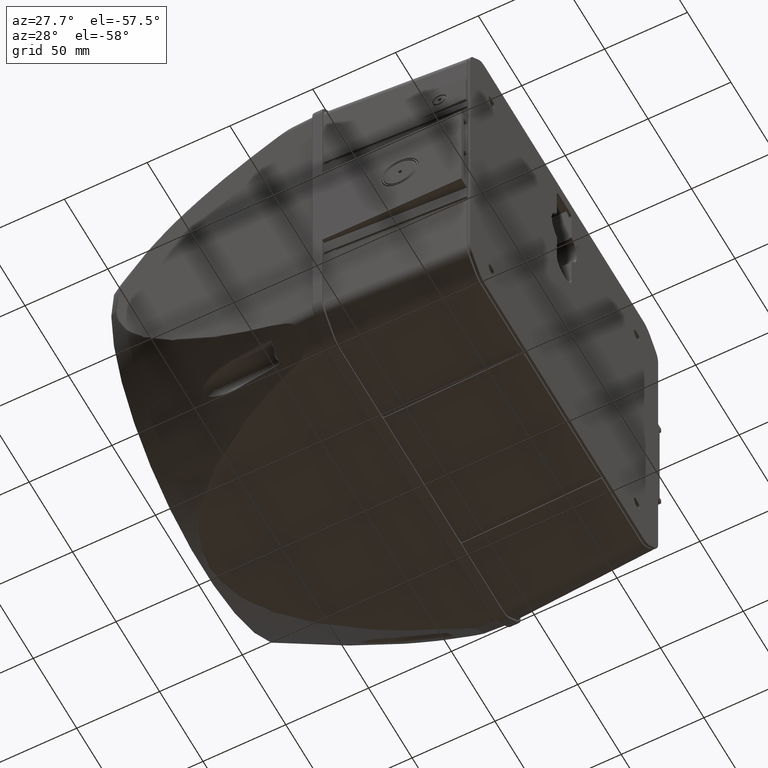
[diagram: clean part render]
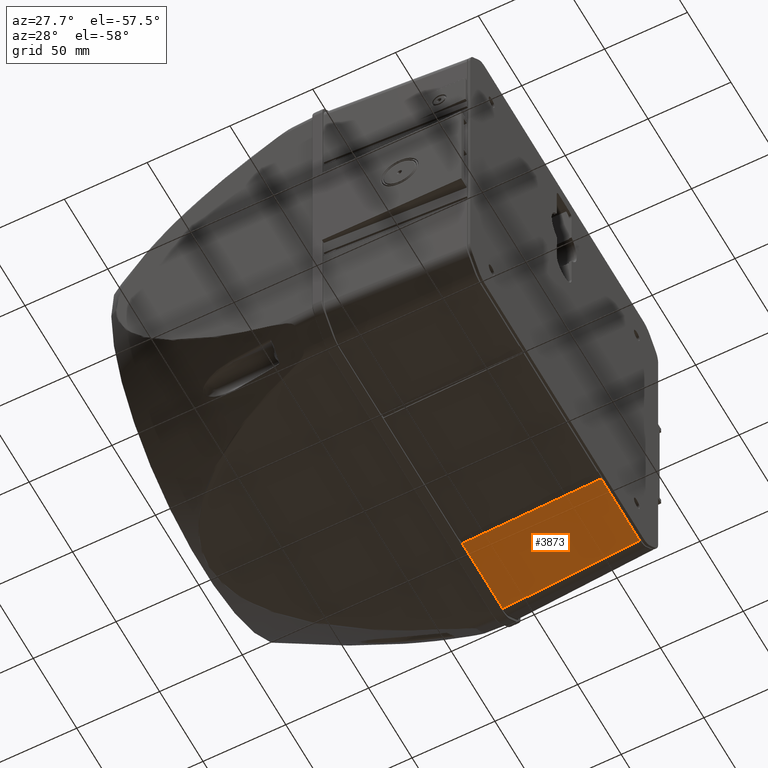
[diagram: same view with one face highlighted and labeled with its STEP entity id]
A machine part, auxiliary view. The second image highlights one B-rep face of the part: STEP entity #3873.
In plain terms, the highlighted planar face has unit normal (0.0523, 0, -0.9986).
Its self-contained STEP definition (entity closure, byte-faithful):
#623=ELLIPSE('',#23773,0.450617555699064,0.45);
#3873=ADVANCED_FACE('',(#5720),#5162,.T.);
#5162=PLANE('',#23774);
#5720=FACE_OUTER_BOUND('',#7218,.T.);
#7218=EDGE_LOOP('',(#10528,#10529,#10530,#10531,#10532));
#10528=ORIENTED_EDGE('',*,*,#18398,.T.);
#10529=ORIENTED_EDGE('',*,*,#18399,.T.);
#10530=ORIENTED_EDGE('',*,*,#18400,.T.);
#10531=ORIENTED_EDGE('',*,*,#18401,.T.);
#10532=ORIENTED_EDGE('',*,*,#18402,.T.);
#16134=VERTEX_POINT('',#42281);
#16135=VERTEX_POINT('',#42282);
#16136=VERTEX_POINT('',#42284);
#16137=VERTEX_POINT('',#42286);
#16138=VERTEX_POINT('',#42288);
#18398=EDGE_CURVE('',#16134,#16135,#20976,.T.);
#18399=EDGE_CURVE('',#16135,#16136,#20977,.T.);
#18400=EDGE_CURVE('',#16136,#16137,#20978,.T.);
#18401=EDGE_CURVE('',#16137,#16138,#623,.T.);
#18402=EDGE_CURVE('',#16138,#16134,#20979,.T.);
#20976=LINE('',#42280,#22343);
#20977=LINE('',#42283,#22344);
#20978=LINE('',#42285,#22345);
#20979=LINE('',#42289,#22346);
#22343=VECTOR('',#28039,1.);
#22344=VECTOR('',#28040,1.);
#22345=VECTOR('',#28041,1.);
#22346=VECTOR('',#28044,1.);
#23773=AXIS2_PLACEMENT_3D('',#42287,#28042,#28043);
#23774=AXIS2_PLACEMENT_3D('',#42290,#28045,#28046);
#28039=DIRECTION('',(-0.0216731708520751,-0.0523236630107089,-0.998394965909964));
#28040=DIRECTION('',(-1.,0.,0.));
#28041=DIRECTION('',(-0.00871457699362754,0.0523339689081494,0.998591614147717));
#28042=DIRECTION('',(0.,-0.998629534754574,0.0523359562429438));
#28043=DIRECTION('',(0.,-0.0523359562429438,-0.998629534754574));
#28044=DIRECTION('',(1.,0.,0.));
#28045=DIRECTION('',(0.,0.998629534754574,-0.0523359562429438));
#28046=DIRECTION('',(0.,0.0523359562429438,0.998629534754574));
#42280=CARTESIAN_POINT('',(93.3196857152531,112.394123906328,-130.369060471694));
#42281=CARTESIAN_POINT('',(93.2281499756316,112.173137082292,-134.585740267315));
#42282=CARTESIAN_POINT('',(91.4139342440903,107.793232858134,-218.159291447624));
#42283=CARTESIAN_POINT('',(4.85722573273506E-014,107.793232858134,-218.159291447624));
#42284=CARTESIAN_POINT('',(47.3396789661658,107.793232858134,-218.159291447624));
#42285=CARTESIAN_POINT('',(46.5523792572428,112.521232681682,-127.943680554948));
#42286=CARTESIAN_POINT('',(46.6105148923532,112.172108619488,-134.60536450665));
#42287=CARTESIAN_POINT('',(46.1605320269743,112.171902817232,-134.609291447624));
#42288=CARTESIAN_POINT('',(46.6099153176138,112.173137082292,-134.585740267315));
#42289=CARTESIAN_POINT('',(4.85722573273506E-014,112.173137082292,-134.585740267315));
#42290=CARTESIAN_POINT('',(4.85722573273506E-014,112.5,-128.348824256376));